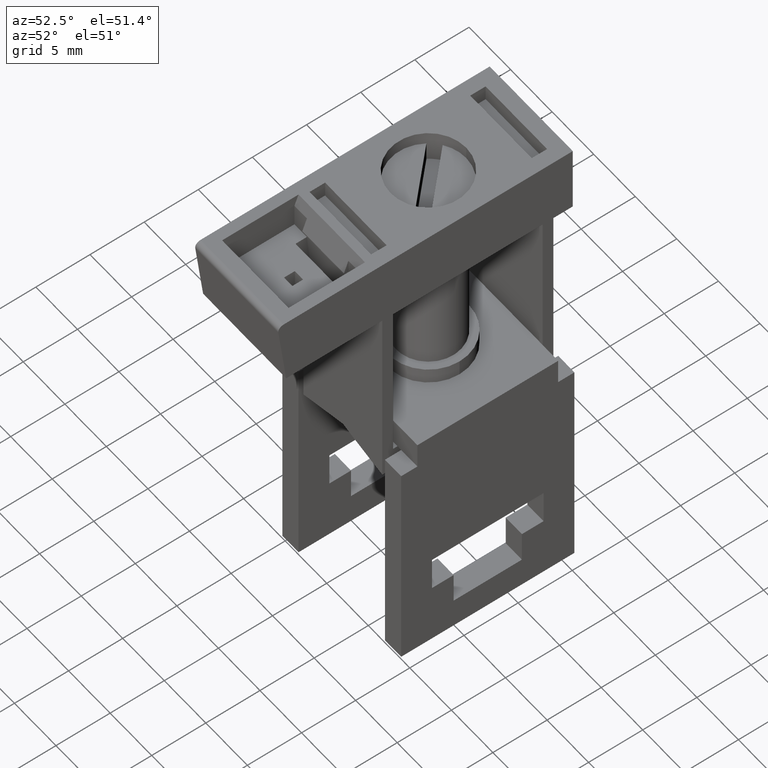
[diagram: clean part render]
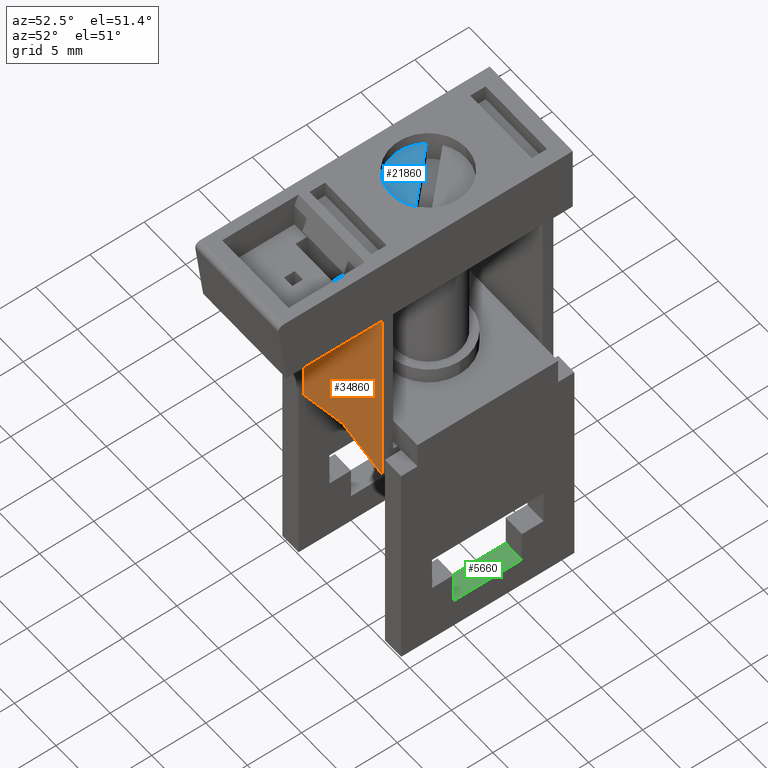
[diagram: same view with three faces highlighted in distinct colors, each labeled with its STEP entity id]
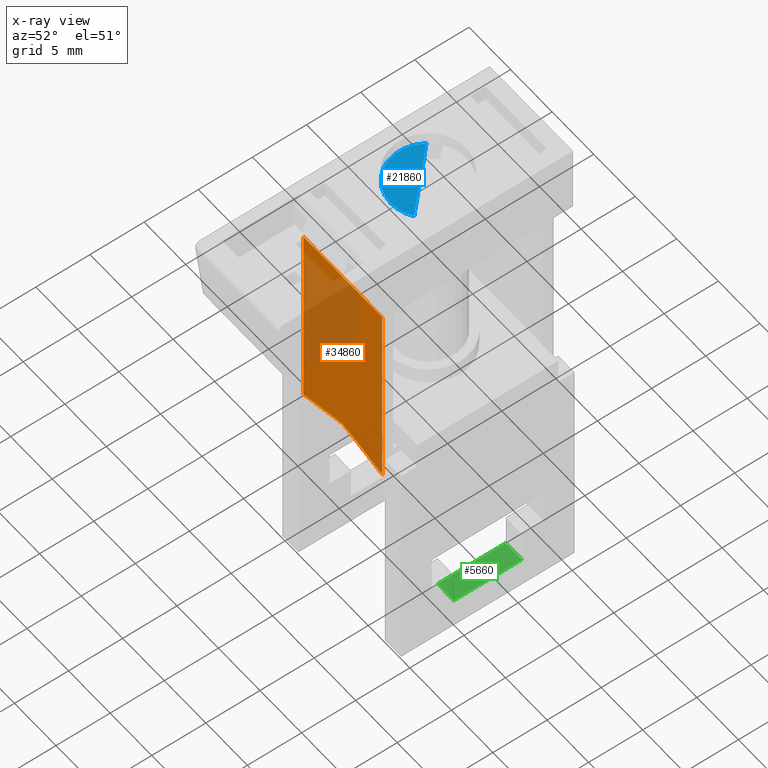
[diagram: x-ray of the same camera — body ghosted, the three highlighted faces saturated]
A machine part, auxiliary view with three faces highlighted in distinct colors.
The next image is the same camera in x-ray (body ghosted, the three faces saturated) — at least one of them is partly hidden behind the body in this view.
Their STEP definitions:

[orange] entity #34860 — the highlighted planar face has unit normal (0, 1, -0).
#6260=CARTESIAN_POINT('',(-21.9556108469939,-15.7999999999999,15.9));
#6270=DIRECTION('',(7.28920975411253E-15,1.,1.03685905229987E-28));
#6280=VECTOR('',#6270,1.);
#6290=LINE('',#6260,#6280);
#6300=CARTESIAN_POINT('',(-21.9556108469938,-6.29999999999994,15.9));
#6310=VERTEX_POINT('',#6300);
#6320=CARTESIAN_POINT('',(-21.9556108469937,12.2000000000001,15.9));
#6330=VERTEX_POINT('',#6320);
#6340=EDGE_CURVE('',#6310,#6330,#6290,.T.);
#7190=CARTESIAN_POINT('',(-2.49865170406632E-14,12.1999999999999,
15.9000000000001));
#7200=DIRECTION('',(-1.,7.28920975411253E-15,-7.24514098033355E-15));
#7210=VECTOR('',#7200,1.);
#7220=LINE('',#7190,#7210);
#7230=CARTESIAN_POINT('',(-31.4556108469937,12.2000000000001,
15.8999999999999));
#7240=VERTEX_POINT('',#7230);
#7250=EDGE_CURVE('',#6330,#7240,#7220,.T.);
#33770=CARTESIAN_POINT('',(-31.4556108469939,-14.7647238195898,
15.8999999999999));
#33780=DIRECTION('',(7.28920975411253E-15,1.,1.03685905229987E-28));
#33790=VECTOR('',#33780,1.);
#33800=LINE('',#33770,#33790);
#33810=CARTESIAN_POINT('',(-31.4556108469938,-6.29999999999985,
15.8999999999999));
#33820=VERTEX_POINT('',#33810);
#33830=EDGE_CURVE('',#33820,#7240,#33800,.T.);
#34620=CARTESIAN_POINT('',(-2.82981630304813,-41.8239061243704,
15.9000000000001));
#34630=DIRECTION('',(7.24514098033355E-15,5.0874552926219E-29,-1.));
#34640=DIRECTION('',(-1.,7.28920975411253E-15,-7.24514098033355E-15));
#34650=AXIS2_PLACEMENT_3D('',#34620,#34630,#34640);
#34660=PLANE('',#34650);
#34670=ORIENTED_EDGE('',*,*,#6340,.T.);
#34680=CARTESIAN_POINT('',(-2.82981630304797,-11.424741202654,
15.9000000000001));
#34690=DIRECTION('',(-0.965925826289066,0.258819045102528,
-6.99826878800945E-15));
#34700=VECTOR('',#34690,1.);
#34710=LINE('',#34680,#34700);
#34720=CARTESIAN_POINT('',(-26.7056108469938,-5.02724133595207,
15.8999999999999));
#34730=VERTEX_POINT('',#34720);
#34740=EDGE_CURVE('',#6310,#34730,#34710,.T.);
#34750=ORIENTED_EDGE('',*,*,#34740,.F.);
#34760=CARTESIAN_POINT('',(-2.82981630304787,1.37025853074946,
15.9000000000001));
#34770=DIRECTION('',(-0.96592582628907,-0.258819045102513,
-6.9982687880095E-15));
#34780=VECTOR('',#34770,1.);
#34790=LINE('',#34760,#34780);
#34800=EDGE_CURVE('',#34730,#33820,#34790,.T.);
#34810=ORIENTED_EDGE('',*,*,#34800,.F.);
#34820=ORIENTED_EDGE('',*,*,#33830,.F.);
#34830=ORIENTED_EDGE('',*,*,#7250,.T.);
#34840=EDGE_LOOP('',(#34830,#34820,#34810,#34750,#34670));
#34850=FACE_OUTER_BOUND('',#34840,.T.);
#34860=ADVANCED_FACE('',(#34850),#34660,.F.);

[blue] entity #21860 — the highlighted planar face has unit normal (0, 0, 1).
#21090=CARTESIAN_POINT('',(-24.6916378476583,17.5000000000001,
10.8625011367592));
#21100=VERTEX_POINT('',#21090);
#21320=CARTESIAN_POINT('',(-26.7056108469937,17.5000000000001,
7.99999999999994));
#21330=DIRECTION('',(7.28920975411253E-15,1.,1.03673579278343E-28));
#21340=DIRECTION('',(-7.24514098033355E-15,-5.06596612571619E-29,1.));
#21350=AXIS2_PLACEMENT_3D('',#21320,#21330,#21340);
#21360=CIRCLE('',#21350,3.5);
#21520=CARTESIAN_POINT('',(-26.7056108469937,17.5000000000001,
11.4999999999999));
#21530=VERTEX_POINT('',#21520);
#21560=EDGE_CURVE('',#21530,#21100,#21360,.T.);
#21680=CARTESIAN_POINT('',(-28.0345452852766,17.5000000000001,
9.32893443828291));
#21690=DIRECTION('',(7.28920975411253E-15,1.,1.02551917678732E-28));
#21700=DIRECTION('',(-0.707106781186553,5.15424964662406E-15,
0.707106781186542));
#21710=AXIS2_PLACEMENT_3D('',#21680,#21690,#21700);
#21720=PLANE('',#21710);
#21730=ORIENTED_EDGE('',*,*,#21560,.T.);
#21740=CARTESIAN_POINT('',(-29.5681119837529,17.5000000000001,
5.98602700066453));
#21750=VERTEX_POINT('',#21740);
#21760=EDGE_CURVE('',#21750,#21530,#21360,.T.);
#21770=ORIENTED_EDGE('',*,*,#21760,.T.);
#21780=CARTESIAN_POINT('',(-26.7056108469937,17.5000000000001,
8.84852813742379));
#21790=DIRECTION('',(-0.707106781186542,5.15424964662414E-15,
-0.707106781186553));
#21800=VECTOR('',#21790,1.);
#21810=LINE('',#21780,#21800);
#21820=EDGE_CURVE('',#21100,#21750,#21810,.T.);
#21830=ORIENTED_EDGE('',*,*,#21820,.T.);
#21840=EDGE_LOOP('',(#21830,#21770,#21730));
#21850=FACE_OUTER_BOUND('',#21840,.T.);
#21860=ADVANCED_FACE('',(#21850),#21720,.T.);

[green] entity #5660 — the highlighted planar face has unit normal (0, -0, -1).
#1020=CARTESIAN_POINT('',(-19.5556108469939,-22.2999999999999,11.15));
#1030=VERTEX_POINT('',#1020);
#1060=CARTESIAN_POINT('',(-19.5556108469939,-22.2999999999999,
7.99999999999999));
#1070=DIRECTION('',(7.24514098033355E-15,5.06719872088059E-29,-1.));
#1080=VECTOR('',#1070,1.);
#1090=LINE('',#1060,#1080);
#1100=CARTESIAN_POINT('',(-19.5556108469939,-22.2999999999999,4.85));
#1110=VERTEX_POINT('',#1100);
#1120=EDGE_CURVE('',#1030,#1110,#1090,.T.);
#3850=CARTESIAN_POINT('',(-21.5056108469939,-22.2999999999999,
4.84999999999999));
#3860=VERTEX_POINT('',#3850);
#3890=CARTESIAN_POINT('',(-21.5056108469939,-22.2999999999999,
7.99999999999998));
#3900=DIRECTION('',(-7.24514098033355E-15,-5.06719872088059E-29,1.));
#3910=VECTOR('',#3900,1.);
#3920=LINE('',#3890,#3910);
#3930=CARTESIAN_POINT('',(-21.5056108469939,-22.2999999999999,11.15));
#3940=VERTEX_POINT('',#3930);
#3950=EDGE_CURVE('',#3860,#3940,#3920,.T.);
#5450=CARTESIAN_POINT('',(-35.2856132469939,-22.2999999999999,
4.84999999999989));
#5460=DIRECTION('',(6.12323399573723E-17,-1.,-5.02283502732591E-29));
#5470=DIRECTION('',(-7.24514098033355E-15,-5.06719872088059E-29,1.));
#5480=AXIS2_PLACEMENT_3D('',#5450,#5460,#5470);
#5490=PLANE('',#5480);
#5500=ORIENTED_EDGE('',*,*,#3950,.T.);
#5510=CARTESIAN_POINT('',(-1.25516328713455E-13,-22.2999999999999,
4.85000000000014));
#5520=DIRECTION('',(-1.,-6.12323399573723E-17,-7.24514098033355E-15));
#5530=VECTOR('',#5520,1.);
#5540=LINE('',#5510,#5530);
#5550=EDGE_CURVE('',#1110,#3860,#5540,.T.);
#5560=ORIENTED_EDGE('',*,*,#5550,.T.);
#5570=ORIENTED_EDGE('',*,*,#1120,.T.);
#5580=CARTESIAN_POINT('',(-1.71160716889556E-13,-22.2999999999999,
11.1500000000001));
#5590=DIRECTION('',(-1.,-6.12323399573723E-17,-7.24514098033355E-15));
#5600=VECTOR('',#5590,1.);
#5610=LINE('',#5580,#5600);
#5620=EDGE_CURVE('',#1030,#3940,#5610,.T.);
#5630=ORIENTED_EDGE('',*,*,#5620,.F.);
#5640=EDGE_LOOP('',(#5630,#5570,#5560,#5500));
#5650=FACE_OUTER_BOUND('',#5640,.T.);
#5660=ADVANCED_FACE('',(#5650),#5490,.F.);